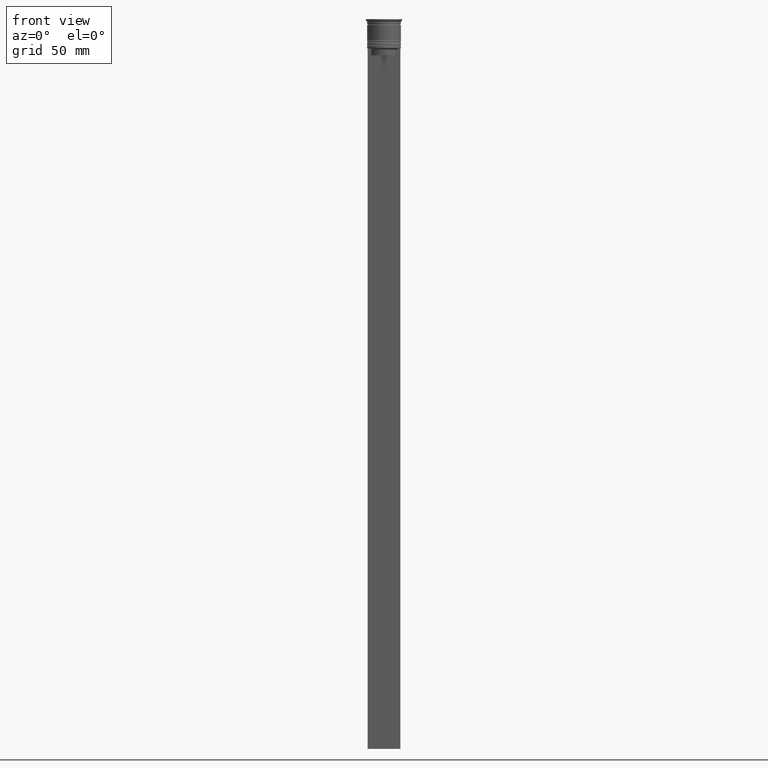
[diagram: clean part render]
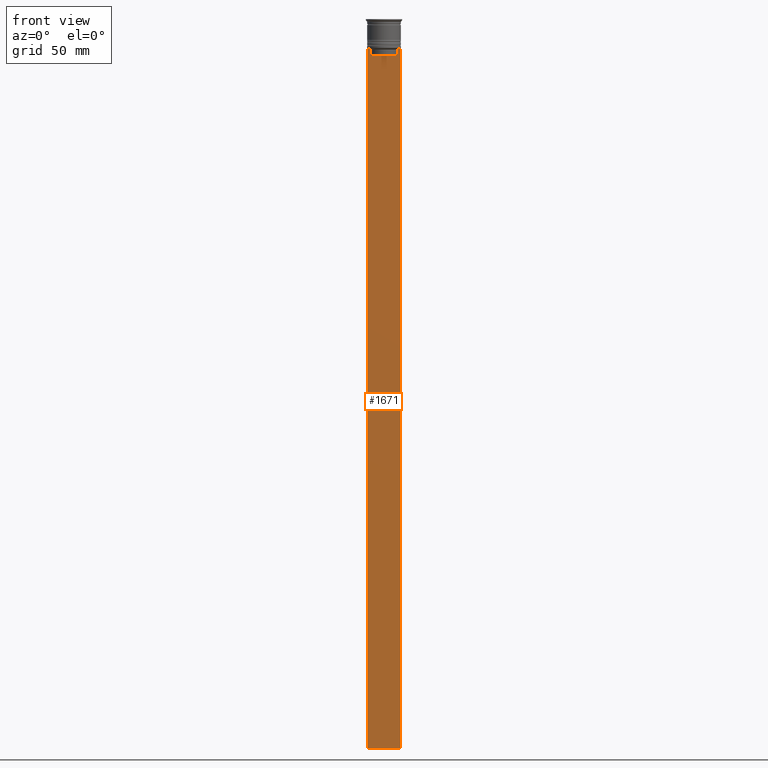
[diagram: same view with one face highlighted and labeled with its STEP entity id]
A machine part, front view. The second image highlights one B-rep face of the part: STEP entity #1671.
In plain terms, the highlighted planar face has unit normal (0, -1, -0).
Its self-contained STEP definition (entity closure, byte-faithful):
#4 = ORIENTED_EDGE ( 'NONE', *, *, #2171, .F. ) ;
#14 = LINE ( 'NONE', #202, #1500 ) ;
#30 = VECTOR ( 'NONE', #895, 1000.000000000000000 ) ;
#42 = CARTESIAN_POINT ( 'NONE',  ( -6.999999999999987566, -0.5000000000000022204, -312.5000000000000000 ) ) ;
#43 = DIRECTION ( 'NONE',  ( -1.000000000000000000, 0.000000000000000000, 0.000000000000000000 ) ) ;
#77 = ORIENTED_EDGE ( 'NONE', *, *, #1790, .F. ) ;
#125 = VERTEX_POINT ( 'NONE', #852 ) ;
#131 = LINE ( 'NONE', #321, #593 ) ;
#162 = VERTEX_POINT ( 'NONE', #2101 ) ;
#202 = CARTESIAN_POINT ( 'NONE',  ( 5.627832620112292794, -0.5000000000000022204, 0.000000000000000000 ) ) ;
#260 = VERTEX_POINT ( 'NONE', #387 ) ;
#321 = CARTESIAN_POINT ( 'NONE',  ( 7.000000000000012434, -0.5000000000000022204, -12.50000000000000000 ) ) ;
#345 = CARTESIAN_POINT ( 'NONE',  ( 7.000000000000012434, -0.5000000000000022204, 1.535668847618198329 ) ) ;
#351 = CARTESIAN_POINT ( 'NONE',  ( 5.627832620112292794, -0.5000000000000022204, -15.50000000000000000 ) ) ;
#372 = CARTESIAN_POINT ( 'NONE',  ( -6.999999999999987566, -0.5000000000000022204, -12.50000000000000000 ) ) ;
#387 = CARTESIAN_POINT ( 'NONE',  ( -5.627832620112292794, -0.5000000000000022204, -15.50000000000000000 ) ) ;
#460 = EDGE_LOOP ( 'NONE', ( #1397, #573, #857, #1169, #1092, #1478, #899, #77, #4, #2259 ) ) ;
#520 = DIRECTION ( 'NONE',  ( 1.000000000000000000, 0.000000000000000000, 0.000000000000000000 ) ) ;
#573 = ORIENTED_EDGE ( 'NONE', *, *, #597, .F. ) ;
#579 = CARTESIAN_POINT ( 'NONE',  ( 7.000000000000012434, -0.5000000000000022204, -312.5000000000000000 ) ) ;
#593 = VECTOR ( 'NONE', #1254, 1000.000000000000000 ) ;
#597 = EDGE_CURVE ( 'NONE', #650, #2206, #1021, .T. ) ;
#644 = CARTESIAN_POINT ( 'NONE',  ( -5.627832620112292794, -0.5000000000000022204, 0.000000000000000000 ) ) ;
#650 = VERTEX_POINT ( 'NONE', #372 ) ;
#681 = CARTESIAN_POINT ( 'NONE',  ( 6.129641098791995368, -0.5000000000000022204, -12.50000000000000000 ) ) ;
#705 = B_SPLINE_CURVE_WITH_KNOTS ( 'NONE', 3,
 ( #1768, #855, #1584, #681 ),
 .UNSPECIFIED., .F., .F.,
 ( 4, 4 ),
 ( 0.02651134470867370918, 0.02721991123504334531 ),
 .UNSPECIFIED. ) ;
#751 = CARTESIAN_POINT ( 'NONE',  ( -6.129641098791995368, -0.5000000000000022204, -12.50000000000000000 ) ) ;
#796 = CARTESIAN_POINT ( 'NONE',  ( -6.129641098791995368, -0.5000000000000022204, -12.50000000000000000 ) ) ;
#798 = VERTEX_POINT ( 'NONE', #42 ) ;
#850 = VECTOR ( 'NONE', #43, 1000.000000000000000 ) ;
#852 = CARTESIAN_POINT ( 'NONE',  ( 7.000000000000012434, -0.5000000000000022204, -12.50000000000000000 ) ) ;
#855 = CARTESIAN_POINT ( 'NONE',  ( 5.795128760752288777, -0.5000000000000022204, -12.83336023406855375 ) ) ;
#857 = ORIENTED_EDGE ( 'NONE', *, *, #1680, .T. ) ;
#876 = VECTOR ( 'NONE', #2299, 1000.000000000000000 ) ;
#895 = DIRECTION ( 'NONE',  ( 0.000000000000000000, 0.000000000000000000, -1.000000000000000000 ) ) ;
#899 = ORIENTED_EDGE ( 'NONE', *, *, #920, .F. ) ;
#905 = DIRECTION ( 'NONE',  ( -0.000000000000000000, -0.000000000000000000, 1.000000000000000000 ) ) ;
#920 = EDGE_CURVE ( 'NONE', #1107, #1741, #705, .T. ) ;
#1021 = LINE ( 'NONE', #1365, #876 ) ;
#1027 = VERTEX_POINT ( 'NONE', #351 ) ;
#1070 = CARTESIAN_POINT ( 'NONE',  ( 6.129641098791995368, -0.5000000000000022204, -12.50000000000000000 ) ) ;
#1092 = ORIENTED_EDGE ( 'NONE', *, *, #1711, .F. ) ;
#1107 = VERTEX_POINT ( 'NONE', #1524 ) ;
#1169 = ORIENTED_EDGE ( 'NONE', *, *, #1774, .F. ) ;
#1209 = DIRECTION ( 'NONE',  ( 0.000000000000000000, 0.000000000000000000, -1.000000000000000000 ) ) ;
#1243 = DIRECTION ( 'NONE',  ( 0.000000000000000000, -1.000000000000000000, -0.000000000000000000 ) ) ;
#1254 = DIRECTION ( 'NONE',  ( 1.000000000000000000, 0.000000000000000000, 0.000000000000000000 ) ) ;
#1311 = B_SPLINE_CURVE_WITH_KNOTS ( 'NONE', 3,
 ( #796, #2270, #1550, #1705 ),
 .UNSPECIFIED., .F., .F.,
 ( 4, 4 ),
 ( 0.01045365750109871796, 0.01116204421161398619 ),
 .UNSPECIFIED. ) ;
#1365 = CARTESIAN_POINT ( 'NONE',  ( 7.000000000000012434, -0.5000000000000022204, -12.50000000000000000 ) ) ;
#1372 = DIRECTION ( 'NONE',  ( 0.000000000000000000, 0.000000000000000000, -1.000000000000000000 ) ) ;
#1382 = VECTOR ( 'NONE', #520, 1000.000000000000000 ) ;
#1397 = ORIENTED_EDGE ( 'NONE', *, *, #1934, .F. ) ;
#1419 = LINE ( 'NONE', #2141, #1382 ) ;
#1426 = PLANE ( 'NONE',  #2142 ) ;
#1478 = ORIENTED_EDGE ( 'NONE', *, *, #1740, .F. ) ;
#1500 = VECTOR ( 'NONE', #905, 1000.000000000000000 ) ;
#1524 = CARTESIAN_POINT ( 'NONE',  ( 5.627832620112292794, -0.5000000000000022204, -13.00000000000000000 ) ) ;
#1550 = CARTESIAN_POINT ( 'NONE',  ( -5.795128834036803234, -0.5000000000000022204, -12.83336016107156574 ) ) ;
#1584 = CARTESIAN_POINT ( 'NONE',  ( 5.962396079681182570, -0.5000000000000022204, -12.66669137279835766 ) ) ;
#1671 = ADVANCED_FACE ( 'NONE', ( #1951 ), #1426, .T. ) ;
#1680 = EDGE_CURVE ( 'NONE', #650, #798, #1986, .T. ) ;
#1683 = VERTEX_POINT ( 'NONE', #2155 ) ;
#1705 = CARTESIAN_POINT ( 'NONE',  ( -5.627832620112292794, -0.5000000000000022204, -13.00000000000000000 ) ) ;
#1711 = EDGE_CURVE ( 'NONE', #125, #1683, #1795, .T. ) ;
#1740 = EDGE_CURVE ( 'NONE', #1741, #125, #131, .T. ) ;
#1741 = VERTEX_POINT ( 'NONE', #1070 ) ;
#1768 = CARTESIAN_POINT ( 'NONE',  ( 5.627832620112292794, -0.5000000000000022204, -13.00000000000000000 ) ) ;
#1770 = VECTOR ( 'NONE', #1209, 1000.000000000000000 ) ;
#1774 = EDGE_CURVE ( 'NONE', #1683, #798, #1842, .T. ) ;
#1784 = CARTESIAN_POINT ( 'NONE',  ( -6.999999999999987566, -0.5000000000000022204, 1.535668847618198329 ) ) ;
#1790 = EDGE_CURVE ( 'NONE', #1027, #1107, #14, .T. ) ;
#1795 = LINE ( 'NONE', #345, #30 ) ;
#1842 = LINE ( 'NONE', #579, #850 ) ;
#1915 = VECTOR ( 'NONE', #1372, 1000.000000000000000 ) ;
#1934 = EDGE_CURVE ( 'NONE', #2206, #162, #1311, .T. ) ;
#1935 = EDGE_CURVE ( 'NONE', #162, #260, #2245, .T. ) ;
#1951 = FACE_OUTER_BOUND ( 'NONE', #460, .T. ) ;
#1986 = LINE ( 'NONE', #1784, #1770 ) ;
#2101 = CARTESIAN_POINT ( 'NONE',  ( -5.627832620112292794, -0.5000000000000022204, -13.00000000000000000 ) ) ;
#2112 = DIRECTION ( 'NONE',  ( 0.000000000000000000, 0.000000000000000000, -1.000000000000000000 ) ) ;
#2141 = CARTESIAN_POINT ( 'NONE',  ( 0.000000000000000000, -0.5000000000000022204, -15.50000000000000000 ) ) ;
#2142 = AXIS2_PLACEMENT_3D ( 'NONE', #2320, #1243, #2112 ) ;
#2155 = CARTESIAN_POINT ( 'NONE',  ( 7.000000000000012434, -0.5000000000000022204, -312.5000000000000000 ) ) ;
#2171 = EDGE_CURVE ( 'NONE', #260, #1027, #1419, .T. ) ;
#2206 = VERTEX_POINT ( 'NONE', #751 ) ;
#2245 = LINE ( 'NONE', #644, #1915 ) ;
#2259 = ORIENTED_EDGE ( 'NONE', *, *, #1935, .F. ) ;
#2270 = CARTESIAN_POINT ( 'NONE',  ( -5.962396146966409738, -0.5000000000000022204, -12.66669130573587054 ) ) ;
#2299 = DIRECTION ( 'NONE',  ( 1.000000000000000000, 0.000000000000000000, 0.000000000000000000 ) ) ;
#2320 = CARTESIAN_POINT ( 'NONE',  ( 7.000000000000012434, -0.5000000000000022204, 1.535668847618198329 ) ) ;